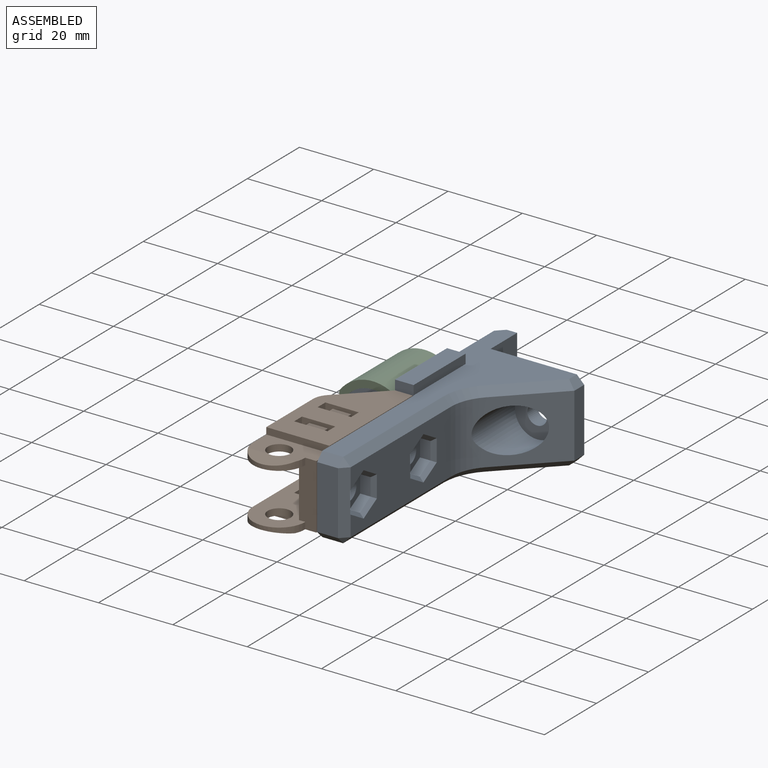
[diagram: assembled view]
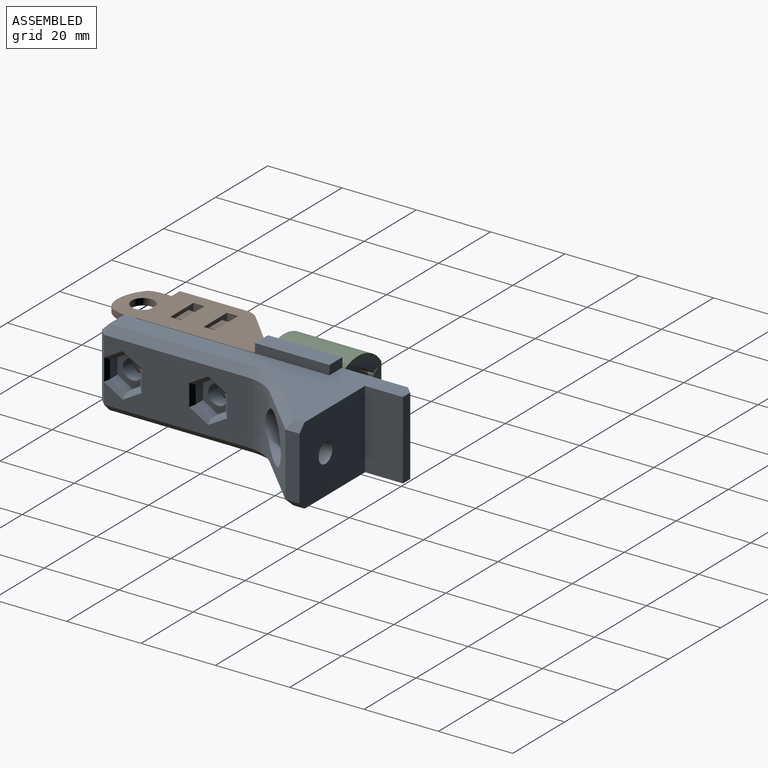
[diagram: assembled view, second angle]
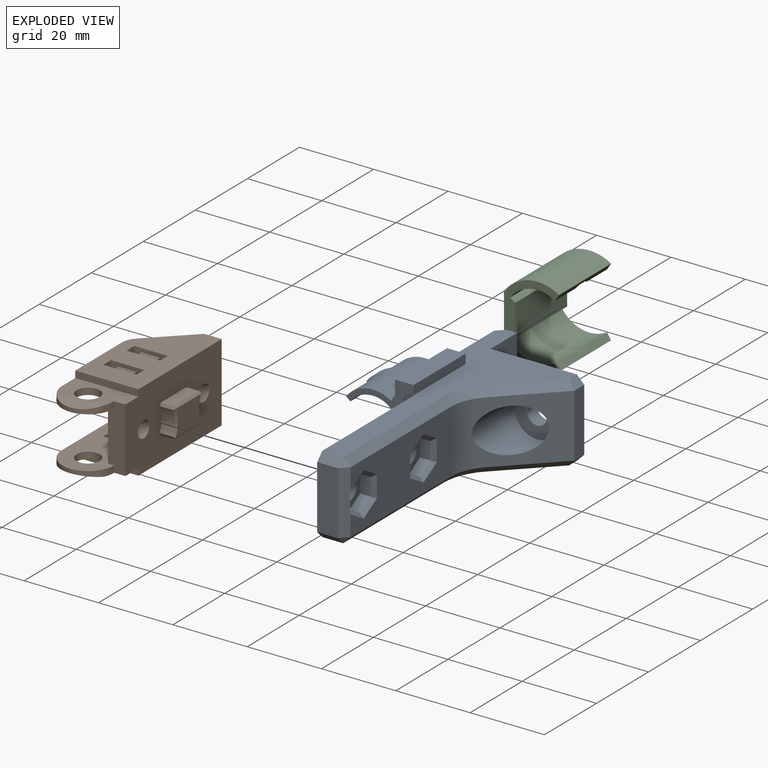
[diagram: exploded view]
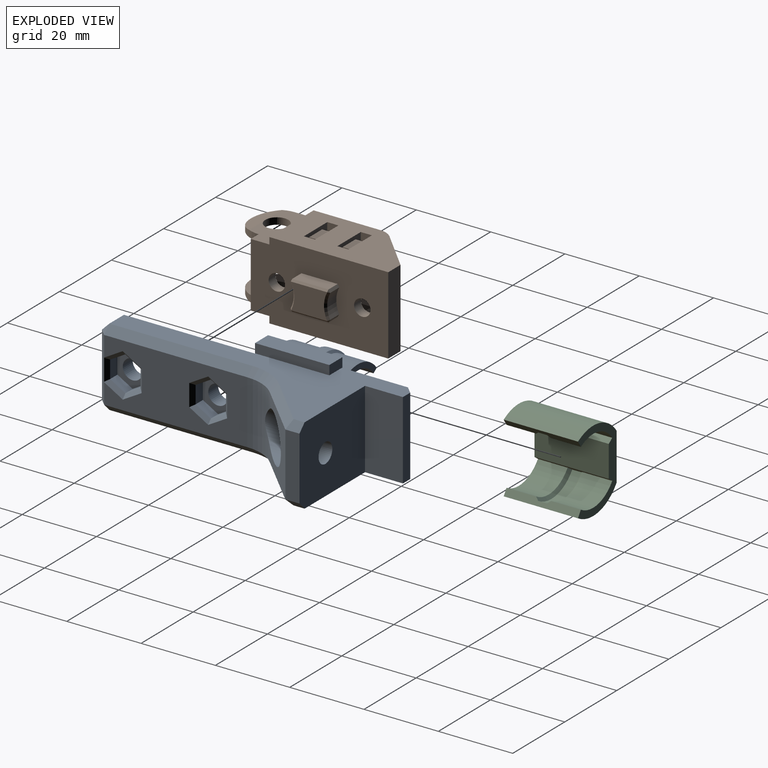
[diagram: exploded view, second angle]
ASSEMBLY  parts=3 mates=2
PART A: 87 faces, bbox 44.2x77.3x26.3 mm
  f0: plane 75x28mm, normal (0,0,1), area 668.2mm2, adj f6,f7,f8,f9,f10,f11,f49,f50
  f1: plane 75x28mm, normal (0,0,-1), area 668.2mm2, adj f6,f7,f8,f9,f10,f11,f55,f58
  f2: plane 17x5.6mm, normal (0,-1,0), area 95.2mm2, adj f11,f52,f55,f56
  f3: plane 38.53x17mm, normal (1,0,0), area 475.4mm2, adj f36,f37,f38,f39,f40,f41,f42,f44
  f4: plane 17.28x14.27mm, normal (0.71,-0.71,0), area 194mm2, adj f5,f34,f36,f50,f61
  f5: plane 17x3.8mm, normal (1,0,0), area 64.6mm2, adj f4,f6,f49,f60
  f6: plane 25.2x21mm, normal (0,1,0), area 503.1mm2, adj f0,f1,f5,f7,f33,f49,f60
  f7: plane 21x10.2mm, normal (1,0,0), area 214.2mm2, adj f0,f1,f6,f8
  f8: plane 21x2.8mm, normal (0,1,0), area 58.8mm2, adj f0,f1,f7,f62
  f9: plane 37.8x21mm, normal (-1,0,0), area 542.6mm2, adj f0,f1,f10,f62,f72,f74,f75,f76
  f10: plane 26x18.3mm, normal (0,-1,0), area 176.2mm2, adj f0,f1,f9,f11,f66,f67,f69,f70
  f11: plane 37.2x21mm, normal (-1,0,0), area 639.6mm2, adj f0,f1,f2,f10,f12,f13,f14,f15
  f12: plane 11x4.3mm, normal (0,0,-1), area 47.3mm2, adj f11,f13,f15,f16
  f13: plane 8.5x4.3mm, normal (0,-1,0), area 36.5mm2, adj f11,f12,f14,f16
  f14: plane 11x4.3mm, normal (0,0,1), area 47.3mm2, adj f11,f13,f15,f16
  f15: plane 8.5x4.3mm, normal (0,1,0), area 36.5mm2, adj f11,f12,f14,f16
  f16: plane 11x8.5mm, normal (-1,0,0), area 93.5mm2, adj f12,f13,f14,f15
  f17: cylinder r=2.65mm len=5.3mm, axis (1,0,0), area 63.3mm2, adj f11,f26
  f18: cylinder r=2.65mm len=5.3mm, axis (1,0,0), area 63.3mm2, adj f11,f19
  f19: plane 9.47x8.2mm, normal (1,0,0), area 36.2mm2, adj f18,f20,f21,f22,f23,f24,f25
  f20: plane 4.1x2.8mm, normal (0,-0.5,0.87), area 13.3mm2, adj f19,f21,f23,f46
  f21: plane 4.73x2.8mm, normal (0,-1,0), area 13.3mm2, adj f19,f20,f22,f48
  f22: plane 4.1x2.8mm, normal (0,-0.5,-0.87), area 13.3mm2, adj f19,f21,f24,f47
  f23: plane 4.1x2.8mm, normal (0,0.5,0.87), area 13.3mm2, adj f19,f20,f25,f44
  f24: plane 4.1x2.8mm, normal (0,0.5,-0.87), area 13.3mm2, adj f19,f22,f25,f45
  f25: plane 4.73x2.8mm, normal (0,1,0), area 13.3mm2, adj f19,f23,f24,f43
  f26: plane 9.47x8.2mm, normal (1,0,0), area 36.2mm2, adj f17,f27,f28,f29,f30,f31,f32
  f27: plane 4.1x2.8mm, normal (0,0.5,0.87), area 13.3mm2, adj f26,f28,f30,f39
  f28: plane 4.1x2.8mm, normal (0,-0.5,0.87), area 13.3mm2, adj f26,f27,f29,f37
  f29: plane 4.73x2.8mm, normal (0,-1,0), area 13.3mm2, adj f26,f28,f31,f38
  f30: plane 4.73x2.8mm, normal (0,1,0), area 13.3mm2, adj f26,f27,f32,f41
  f31: plane 4.1x2.8mm, normal (0,-0.5,-0.87), area 13.3mm2, adj f26,f29,f32,f40
  f32: plane 4.1x2.8mm, normal (0,0.5,-0.87), area 13.3mm2, adj f26,f30,f31,f42
  f33: cylinder r=2.65mm len=5.3mm, axis (0,1,0), area 63.3mm2, adj f6,f35
  f34: cylinder r=6mm len=16.66mm, axis (0,1,0), area 379.9mm2, adj f4,f35,f36
  f35: plane 12x12mm, normal (0,-1,0), area 91mm2, adj f33,f34
  f36: cylinder r=12mm len=17mm, axis (0,0,1), area 140.1mm2, adj f3,f4,f34,f51,f59
  f37: plane 5.1x3.52mm, normal (0.71,-0.35,0.61), area 7.5mm2, adj f3,f28,f38,f39
  f38: plane 5.89x1mm, normal (0.71,-0.71,0), area 7.5mm2, adj f3,f29,f37,f40
  f39: plane 5.1x3.52mm, normal (0.71,0.35,0.61), area 7.5mm2, adj f3,f27,f37,f41
  f40: plane 5.1x3.52mm, normal (0.71,-0.35,-0.61), area 7.5mm2, adj f3,f31,f38,f42
  f41: plane 5.89x1mm, normal (0.71,0.71,0), area 7.5mm2, adj f3,f30,f39,f42
  f42: plane 5.1x3.52mm, normal (0.71,0.35,-0.61), area 7.5mm2, adj f3,f32,f40,f41
  f43: plane 5.83x0.95mm, normal (0.71,0.71,0), area 7.1mm2, adj f25,f44,f45,f56
  f44: plane 5.05x3.52mm, normal (0.71,0.35,0.61), area 7.5mm2, adj f3,f23,f43,f46,f56
  f45: plane 5.05x3.52mm, normal (0.71,0.35,-0.61), area 7.5mm2, adj f3,f24,f43,f47,f56
  f46: plane 5.1x3.52mm, normal (0.71,-0.35,0.61), area 7.5mm2, adj f3,f20,f44,f48
  f47: plane 5.1x3.52mm, normal (0.71,-0.35,-0.61), area 7.5mm2, adj f3,f22,f45,f48
  f48: plane 5.89x1mm, normal (0.71,-0.71,0), area 7.5mm2, adj f3,f21,f46,f47
  f49: plane 3.8x2mm, normal (0.71,0,0.71), area 9.6mm2, adj f0,f5,f6,f50
  f50: plane 15.4x14.81mm, normal (0.5,-0.5,0.71), area 54.8mm2, adj f0,f4,f49,f51
  f51: cone r=14mm half-angle=45deg, axis (0,0,1), area 28.9mm2, adj f0,f36,f50,f53
  f52: plane 5.6x2mm, normal (0,-0.71,0.71), area 15.8mm2, adj f0,f2,f11,f54
  f53: plane 38.53x2mm, normal (0.71,0,0.71), area 109mm2, adj f0,f3,f51,f54
  f54: plane 2x2mm, normal (0.58,-0.58,0.58), area 3.5mm2, adj f52,f53,f56
  f55: plane 5.6x2mm, normal (0,-0.71,-0.71), area 15.8mm2, adj f1,f2,f11,f57
  f56: plane 17x2mm, normal (0.71,-0.71,0), area 47.7mm2, adj f2,f3,f43,f44,f45,f54,f57
  f57: plane 2x2mm, normal (0.58,-0.58,-0.58), area 3.5mm2, adj f55,f56,f58
  f58: plane 38.53x2mm, normal (0.71,0,-0.71), area 109mm2, adj f1,f3,f57,f59
  f59: cone r=14mm half-angle=45deg, axis (0,0,-1), area 28.9mm2, adj f1,f36,f58,f61
  f60: plane 3.8x2mm, normal (0.71,0,-0.71), area 9.6mm2, adj f1,f5,f6,f61
  f61: plane 15.4x14.81mm, normal (0.5,-0.5,-0.71), area 54.8mm2, adj f1,f4,f59,f60
  f62: plane 21x2mm, normal (-0.71,0.71,0), area 59.4mm2, adj f0,f1,f8,f9
  f63: cone r=9.6mm half-angle=45deg, axis (0,-1,0), area 11.9mm2, adj f64,f67,f68,f69
  f64: cylinder r=9.6mm len=12.92mm, axis (0,1,0), area 40.4mm2, adj f63,f65,f67,f69
  f65: cone r=9.6mm half-angle=45deg, axis (0,1,0), area 11.9mm2, adj f64,f66,f67,f69
  f66: cylinder r=9mm len=12.11mm, axis (0,1,0), area 108.3mm2, adj f10,f65,f67,f69
  f67: plane 20x1.68mm, normal (-0.6,0,0.8), area 32mm2, adj f10,f63,f64,f65,f66,f68,f72,f74
  f68: cylinder r=9mm len=12.11mm, axis (0,-1,0), area 108.3mm2, adj f63,f67,f69,f72
  f69: plane 20x1.68mm, normal (-0.84,0,-0.55), area 38mm2, adj f10,f63,f64,f65,f66,f68,f70,f72
  f70: plane 20x3.78mm, normal (-1,0,0), area 75.6mm2, adj f10,f69,f71,f72
  f71: plane 20x5mm, normal (0,0,-1), area 100mm2, adj f10,f70,f72,f73
  f72: plane 18.2x8.78mm, normal (0,1,0), area 36.6mm2, adj f1,f9,f67,f68,f69,f70,f71,f73
  f73: plane 20x2.5mm, normal (1,0,0), area 50mm2, adj f1,f10,f71,f72
  f74: cylinder r=7.5mm len=20mm, axis (0,1,0), area 285.1mm2, adj f9,f10,f67,f72
  f75: cylinder r=7.5mm len=20mm, axis (0,1,0), area 285.1mm2, adj f9,f10,f76,f80
  f76: plane 18.2x8.78mm, normal (0,1,0), area 36.6mm2, adj f0,f9,f75,f77,f78,f79,f80,f82
  f77: plane 20x2.5mm, normal (1,0,0), area 50mm2, adj f0,f10,f76,f78
  f78: plane 20x5mm, normal (0,0,1), area 100mm2, adj f10,f76,f77,f79
  f79: plane 20x3.78mm, normal (-1,0,0), area 75.6mm2, adj f10,f76,f78,f82
  f80: plane 20x1.68mm, normal (-0.6,0,-0.8), area 32mm2, adj f10,f75,f76,f81,f83,f84,f85,f86
  f81: cylinder r=9mm len=12.11mm, axis (0,1,0), area 108.3mm2, adj f10,f80,f82,f84
  f82: plane 20x1.68mm, normal (-0.84,0,0.55), area 38mm2, adj f10,f76,f79,f81,f83,f84,f85,f86
  f83: cylinder r=9.6mm len=12.92mm, axis (0,1,0), area 40.4mm2, adj f80,f82,f84,f86
  f84: cone r=9.6mm half-angle=45deg, axis (0,1,0), area 11.9mm2, adj f80,f81,f82,f83
  f85: cylinder r=9mm len=12.11mm, axis (0,-1,0), area 108.3mm2, adj f76,f80,f82,f86
  f86: cone r=9.6mm half-angle=45deg, axis (0,-1,0), area 11.9mm2, adj f80,f82,f83,f85
PART B: 71 faces, bbox 21x44x21 mm
  f0: plane 37x21mm, normal (0,0,-1), area 651.4mm2, adj f1,f4,f5,f6,f9,f10,f13,f32
  f1: plane 32x17mm, normal (-1,0,0), area 415.6mm2, adj f0,f3,f6,f9,f12,f14,f21,f23
  f2: plane 44x14mm, normal (1,0,0), area 403.5mm2, adj f3,f8,f11,f12,f13,f14,f19,f20
  f3: plane 37x21mm, normal (0,0,1), area 396.7mm2, adj f1,f2,f6,f13,f15,f17,f23,f25
  f4: cylinder r=2.2mm len=4.4mm, axis (0,0,1), area 37.3mm2, adj f0,f18
  f5: cylinder r=2.2mm len=4.4mm, axis (0,0,1), area 37.3mm2, adj f0,f16
  f6: plane 21x4.7mm, normal (0,1,0), area 98.7mm2, adj f0,f1,f3,f14,f32,f40
  f7: plane 12.65x4mm, normal (-0.99,-0.17,0), area 36.7mm2, adj f8,f10,f11
  f8: cylinder r=3.1mm len=6.2mm, axis (-1,0,0), area 35mm2, adj f2,f7,f10
  f9: plane 17x1.8mm, normal (0,-1,0), area 30.6mm2, adj f0,f1,f10,f12
  f10: plane 17x8mm, normal (-1,0,0), area 95.6mm2, adj f0,f7,f8,f9,f11,f12,f13
  f11: cylinder r=7mm len=14mm, axis (1,0,0), area 32.4mm2, adj f2,f7,f10,f12,f13
  f12: plane 22.89x3.6mm, normal (0,0,1), area 73.4mm2, adj f1,f2,f9,f10,f11,f31
  f13: plane 17.4x4.7mm, normal (0,-1,0), area 75.7mm2, adj f0,f2,f3,f10,f11,f33,f37,f38
  f14: plane 10.79x10.53mm, normal (0,0.72,0.7), area 54.3mm2, adj f1,f2,f6,f31
  f15: cylinder r=5mm len=10mm, axis (0,0,1), area 62.8mm2, adj f3,f16
  f16: plane 10x10mm, normal (0,0,1), area 63.3mm2, adj f5,f15
  f17: cylinder r=5mm len=10mm, axis (0,0,1), area 62.8mm2, adj f3,f18
  f18: plane 10x10mm, normal (0,0,1), area 63.3mm2, adj f4,f17
  f19: plane 3x2.6mm, normal (0,0,-1), area 7.8mm2, adj f2,f23,f25,f30
  f20: plane 3x2.6mm, normal (0,0,1), area 7.8mm2, adj f2,f26,f28,f29
  f21: plane 3.6x3mm, normal (0,0,-1), area 10.8mm2, adj f1,f2,f26,f28
  f22: plane 3x2.6mm, normal (0,0,1), area 7.8mm2, adj f2,f23,f25,f30
  f23: plane 9x3.6mm, normal (0,1,0), area 19.4mm2, adj f1,f2,f3,f19,f22,f24,f30
  f24: plane 3.6x3mm, normal (0,0,-1), area 10.8mm2, adj f1,f2,f23,f25
  f25: plane 9x3.6mm, normal (0,-1,0), area 19.4mm2, adj f1,f2,f3,f19,f22,f24,f30
  f26: plane 9x3.6mm, normal (0,1,0), area 19.4mm2, adj f1,f2,f3,f20,f21,f27,f29
  f27: plane 3x2.6mm, normal (0,0,-1), area 7.8mm2, adj f2,f26,f28,f29
  f28: plane 9x3.6mm, normal (0,-1,0), area 19.4mm2, adj f1,f2,f3,f20,f21,f27,f29
  f29: plane 5x3mm, normal (-1,0,0), area 15mm2, adj f20,f26,f27,f28
  f30: plane 5x3mm, normal (-1,0,0), area 15mm2, adj f19,f22,f23,f25
  f31: cylinder r=5mm len=3.6mm, axis (-1,0,0), area 14.4mm2, adj f1,f2,f12,f14
  f32: plane 32x17mm, normal (1,0,0), area 415.6mm2, adj f0,f3,f6,f36,f39,f40,f43,f45
  f33: plane 44x14mm, normal (-1,0,0), area 403.5mm2, adj f3,f13,f35,f38,f39,f40,f41,f42
  f34: plane 12.65x4mm, normal (0.99,-0.17,0), area 36.7mm2, adj f35,f37,f38
  f35: cylinder r=3.1mm len=6.2mm, axis (1,0,0), area 35mm2, adj f33,f34,f37
  f36: plane 17x1.8mm, normal (0,-1,0), area 30.6mm2, adj f0,f32,f37,f39
  f37: plane 17x8mm, normal (1,0,0), area 95.6mm2, adj f0,f13,f34,f35,f36,f38,f39
  f38: cylinder r=7mm len=14mm, axis (-1,0,0), area 32.4mm2, adj f13,f33,f34,f37,f39
  f39: plane 22.89x3.6mm, normal (0,0,1), area 73.4mm2, adj f32,f33,f36,f37,f38,f53
  f40: plane 10.79x10.53mm, normal (0,0.72,0.7), area 54.3mm2, adj f6,f32,f33,f53
  f41: plane 3x2.6mm, normal (0,0,-1), area 7.8mm2, adj f33,f45,f47,f52
  f42: plane 3x2.6mm, normal (0,0,1), area 7.8mm2, adj f33,f48,f50,f51
  f43: plane 3.6x3mm, normal (0,0,-1), area 10.8mm2, adj f32,f33,f48,f50
  f44: plane 3x2.6mm, normal (0,0,1), area 7.8mm2, adj f33,f45,f47,f52
  f45: plane 9x3.6mm, normal (0,1,0), area 19.4mm2, adj f3,f32,f33,f41,f44,f46,f52
  f46: plane 3.6x3mm, normal (0,0,-1), area 10.8mm2, adj f32,f33,f45,f47
  f47: plane 9x3.6mm, normal (0,-1,0), area 19.4mm2, adj f3,f32,f33,f41,f44,f46,f52
  f48: plane 9x3.6mm, normal (0,1,0), area 19.4mm2, adj f3,f32,f33,f42,f43,f49,f51
  f49: plane 3x2.6mm, normal (0,0,-1), area 7.8mm2, adj f33,f48,f50,f51
  f50: plane 9x3.6mm, normal (0,-1,0), area 19.4mm2, adj f3,f32,f33,f42,f43,f49,f51
  f51: plane 5x3mm, normal (1,0,0), area 15mm2, adj f42,f48,f49,f50
  f52: plane 5x3mm, normal (1,0,0), area 15mm2, adj f41,f44,f45,f47
  f53: cylinder r=5mm len=3.6mm, axis (1,0,0), area 14.4mm2, adj f32,f33,f39,f40
  f54: cylinder r=7mm len=6.53mm, axis (0,0,1), area 23.8mm2, adj f0,f59,f63,f64
  f55: plane 9.73x3.5mm, normal (-1,0,0), area 34.1mm2, adj f0,f59,f61,f62
  f56: cylinder r=7mm len=6.53mm, axis (0,0,1), area 23.8mm2, adj f0,f61,f67,f70
  f57: plane 9.73x3.5mm, normal (1,0,0), area 34.1mm2, adj f0,f64,f68,f70
  f58: plane 9.73x7mm, normal (0,0,-1), area 59.9mm2, adj f62,f63,f67,f68
  f59: plane 3.5x0.73mm, normal (-0.52,-0.86,0), area 3mm2, adj f0,f54,f55,f60
  f60: plane 0.73x0.5mm, normal (-0.46,-0.76,-0.46), area 0.2mm2, adj f59,f62,f63
  f61: plane 3.5x0.73mm, normal (-0.52,0.86,0), area 3mm2, adj f0,f55,f56,f65
  f62: plane 9.73x0.5mm, normal (-0.71,0,-0.71), area 6.9mm2, adj f55,f58,f60,f65
  f63: cone r=7mm half-angle=45deg, axis (0,0,-1), area 5mm2, adj f54,f58,f60,f66
  f64: plane 3.5x0.73mm, normal (0.52,-0.86,0), area 3mm2, adj f0,f54,f57,f66
  f65: plane 0.73x0.5mm, normal (-0.46,0.76,-0.46), area 0.2mm2, adj f61,f62,f67
  f66: plane 0.73x0.5mm, normal (0.46,-0.76,-0.46), area 0.2mm2, adj f63,f64,f68
  f67: cone r=7mm half-angle=45deg, axis (0,0,-1), area 5mm2, adj f56,f58,f65,f69
  f68: plane 9.73x0.5mm, normal (0.71,0,-0.71), area 6.9mm2, adj f57,f58,f66,f69
  f69: plane 0.73x0.5mm, normal (0.46,0.76,-0.46), area 0.2mm2, adj f67,f68,f70
  f70: plane 3.5x0.73mm, normal (0.52,0.86,0), area 3mm2, adj f0,f56,f57,f69
PART C: 20 faces, bbox 22x14.8x20 mm
  f0: plane 22x14.83mm, normal (0,0,1), area 92.4mm2, adj f1,f2,f3,f4,f5,f6,f9,f10
  f1: plane 20x12.65mm, normal (0,1,0), area 253mm2, adj f0,f2,f9,f15
  f2: cylinder r=11mm len=20mm, axis (0,0,-1), area 333.7mm2, adj f0,f1,f6,f15
  f3: plane 20x8.5mm, normal (0,-1,0), area 170mm2, adj f0,f4,f10,f15
  f4: plane 20x1.96mm, normal (-0.8,-0.6,0), area 35.5mm2, adj f0,f3,f5,f7,f8,f15,f16,f17
  f5: cylinder r=9mm len=12.06mm, axis (0,0,-1), area 108.3mm2, adj f0,f4,f6,f8
  f6: plane 20x1.68mm, normal (0.55,-0.84,0), area 37.4mm2, adj f0,f2,f5,f7,f8,f15,f16,f17
  f7: cylinder r=9.8mm len=13.14mm, axis (0,0,-1), area 35.4mm2, adj f4,f6,f8,f17
  f8: cone r=9.6mm half-angle=45deg, axis (0,0,-1), area 16mm2, adj f4,f5,f6,f7
  f9: cylinder r=11mm len=20mm, axis (0,0,-1), area 333.7mm2, adj f0,f1,f12,f15
  f10: plane 20x1.96mm, normal (0.8,-0.6,0), area 35.5mm2, adj f0,f3,f11,f13,f14,f15,f18,f19
  f11: cylinder r=9mm len=12.06mm, axis (0,0,-1), area 108.3mm2, adj f0,f10,f12,f14
  f12: plane 20x1.68mm, normal (-0.55,-0.84,0), area 37.4mm2, adj f0,f9,f11,f13,f14,f15,f18,f19
  f13: cylinder r=9.8mm len=13.14mm, axis (0,0,-1), area 35.4mm2, adj f10,f12,f14,f19
  f14: cone r=9.6mm half-angle=45deg, axis (0,0,-1), area 16mm2, adj f10,f11,f12,f13
  f15: plane 22x14.83mm, normal (0,0,-1), area 92.4mm2, adj f1,f2,f3,f4,f6,f9,f10,f12
  f16: cylinder r=9mm len=12.06mm, axis (0,0,1), area 108.3mm2, adj f4,f6,f15,f17
  f17: cone r=9.6mm half-angle=45deg, axis (0,0,1), area 16mm2, adj f4,f6,f7,f16
  f18: cylinder r=9mm len=12.06mm, axis (0,0,1), area 108.3mm2, adj f10,f12,f15,f19
  f19: cone r=9.6mm half-angle=45deg, axis (0,0,1), area 16mm2, adj f10,f12,f13,f18
PLACE A t=(-34.22,14.35,-8.42)mm fixed
PLACE B rot(axis=(0,-1,0),90deg) t=(-37.52,-36.65,2.08)mm
PLACE C rot(axis=(0.58,-0.58,0.58),120deg) t=(-45.42,-5.45,2.08)mm
MATE fastened C.f13 <-> A.f63  axis (0,1,0) through (-45.42,-5.45,2.08)mm
MATE fastened A.f17 <-> B.f15  axis (-1,0,0) through (-34.32,-22.65,2.08)mm
